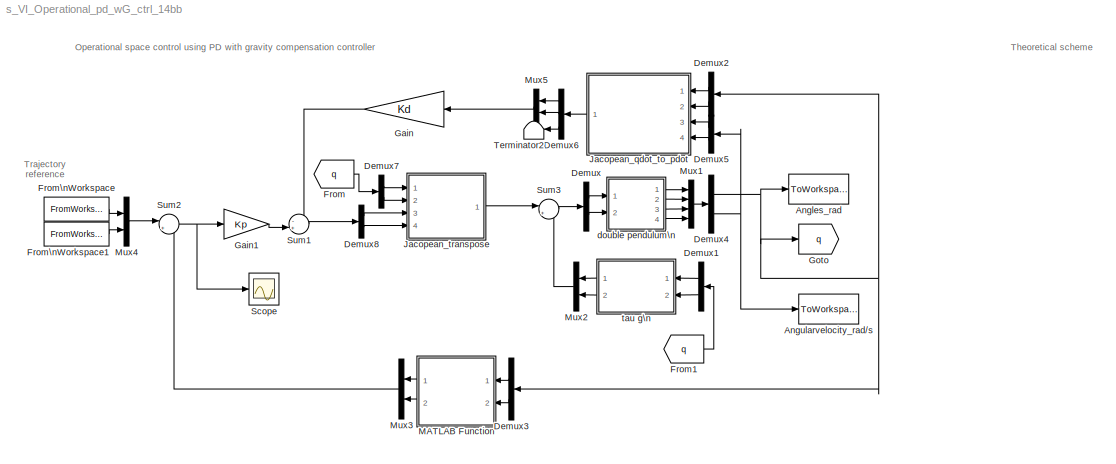
MODEL s_VI_Operational_pd_wG_ctrl_14bb
KIND model
BLOCK [ToWorkspace] Angles_rad
  FixptAsFi = on
  MaxDataPoints = inf
  Ports = [1]
  SID = 70
  SampleTime = -1
  Save2DSignal = 3-D array (concatenate along third dimension)
  SaveFormat = Timeseries
  VariableName = q
BLOCK [ToWorkspace] Angularvelocity_rad//s
  FixptAsFi = on
  MaxDataPoints = inf
  Ports = [1]
  SID = 71
  SampleTime = -1
  Save2DSignal = 3-D array (concatenate along third dimension)
  SaveFormat = Timeseries
  VariableName = q_dot
BLOCK [Demux] Demux
  DisplayOption = bar
  Outputs = 2
  Ports = [1, 2]
  SID = 1
BLOCK [Demux] Demux1
  DisplayOption = bar
  Outputs = 2
  Ports = [1, 2]
  SID = 109
BLOCK [Demux] Demux2
  DisplayOption = bar
  Outputs = 2
  Ports = [1, 2]
  SID = 119
BLOCK [Demux] Demux3
  DisplayOption = bar
  Outputs = 2
  Ports = [1, 2]
  SID = 115
BLOCK [Demux] Demux4
  DisplayOption = bar
  Outputs = 2
  Ports = [1, 2]
  SID = 47
BLOCK [Demux] Demux5
  DisplayOption = bar
  Outputs = 2
  Ports = [1, 2]
  SID = 120
BLOCK [Demux] Demux6
  DisplayOption = bar
  Outputs = 3
  Ports = [1, 3]
  SID = 124
BLOCK [Demux] Demux7
  DisplayOption = bar
  Outputs = 2
  Ports = [1, 2]
  SID = 135
BLOCK [Demux] Demux8
  DisplayOption = bar
  Outputs = 2
  Ports = [1, 2]
  SID = 136
BLOCK [From] From
  GotoTag = q
  SID = 132
BLOCK [From] From1
  GotoTag = q
  SID = 144
BLOCK [FromWorkspace] From\nWorkspace
  SID = 55
  SampleTime = 0
  VariableName = x2d
  ZeroCross = on
BLOCK [FromWorkspace] From\nWorkspace1
  SID = 57
  SampleTime = 0
  VariableName = y2d
  ZeroCross = on
BLOCK [Gain] Gain
  Gain = Kd
  OutDataTypeStr = Inherit: Inherit via internal rule
  ParamDataTypeStr = Inherit: Inherit via internal rule
  SID = 127
  SaturateOnIntegerOverflow = off
BLOCK [Gain] Gain1
  Gain = Kp
  OutDataTypeStr = Inherit: Inherit via internal rule
  ParamDataTypeStr = Inherit: Inherit via internal rule
  SID = 128
  SaturateOnIntegerOverflow = off
BLOCK [Goto] Goto
  GotoTag = q
  SID = 131
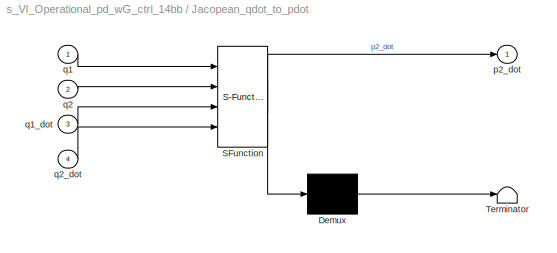
BLOCK [SubSystem] Jacopean_qdot_to_pdot
  ErrorFcn = Stateflow.Translate.translate
  PermitHierarchicalResolution = ParametersOnly
  Ports = [4, 1]
  RequestExecContextInheritance = off
  SFBlockType = MATLAB Function
  SID = 118
  TreatAsAtomicUnit = on
BLOCK [Demux] Jacopean_qdot_to_pdot/ Demux 
  Outputs = 1
  Ports = [1, 1]
  SID = 118::27
BLOCK [S-Function] Jacopean_qdot_to_pdot/ SFunction 
  EnableBusSupport = off
  FunctionName = sf_sfun
  PortCounts = [4 2]
  Ports = [4, 2]
  SFunctionDeploymentMode = off
  SID = 118::26
  Tag = Stateflow S-Function s_VI_Operational_pd_wG_ctrl_14bb 3
BLOCK [Terminator] Jacopean_qdot_to_pdot/ Terminator 
  SID = 118::28
BLOCK [Outport] Jacopean_qdot_to_pdot/p2_dot
  IconDisplay = Port number
  SID = 118::25
BLOCK [Inport] Jacopean_qdot_to_pdot/q1
  IconDisplay = Port number
  SID = 118::1
BLOCK [Inport] Jacopean_qdot_to_pdot/q1_dot
  IconDisplay = Port number
  Port = 3
  SID = 118::23
BLOCK [Inport] Jacopean_qdot_to_pdot/q2
  IconDisplay = Port number
  Port = 2
  SID = 118::22
BLOCK [Inport] Jacopean_qdot_to_pdot/q2_dot
  IconDisplay = Port number
  Port = 4
  SID = 118::24
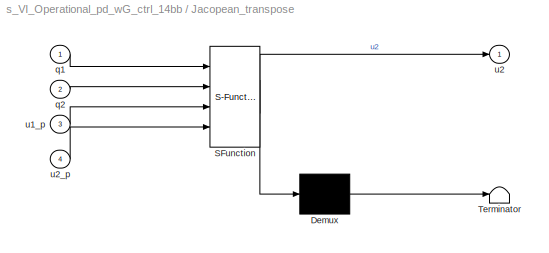
BLOCK [SubSystem] Jacopean_transpose
  ErrorFcn = Stateflow.Translate.translate
  PermitHierarchicalResolution = ParametersOnly
  Ports = [4, 1]
  RequestExecContextInheritance = off
  SFBlockType = MATLAB Function
  SID = 134
  TreatAsAtomicUnit = on
BLOCK [Demux] Jacopean_transpose/ Demux 
  Outputs = 1
  Ports = [1, 1]
  SID = 134::27
BLOCK [S-Function] Jacopean_transpose/ SFunction 
  EnableBusSupport = off
  FunctionName = sf_sfun
  PortCounts = [4 2]
  Ports = [4, 2]
  SFunctionDeploymentMode = off
  SID = 134::26
  Tag = Stateflow S-Function s_VI_Operational_pd_wG_ctrl_14bb 4
BLOCK [Terminator] Jacopean_transpose/ Terminator 
  SID = 134::28
BLOCK [Inport] Jacopean_transpose/q1
  IconDisplay = Port number
  SID = 134::1
BLOCK [Inport] Jacopean_transpose/q2
  IconDisplay = Port number
  Port = 2
  SID = 134::22
BLOCK [Inport] Jacopean_transpose/u1_p
  IconDisplay = Port number
  Port = 3
  SID = 134::23
BLOCK [Outport] Jacopean_transpose/u2
  IconDisplay = Port number
  SID = 134::25
BLOCK [Inport] Jacopean_transpose/u2_p
  IconDisplay = Port number
  Port = 4
  SID = 134::24
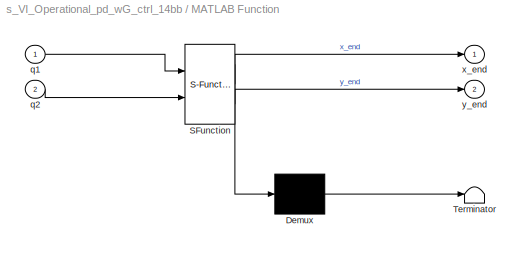
BLOCK [SubSystem] MATLAB Function
  ErrorFcn = Stateflow.Translate.translate
  PermitHierarchicalResolution = ParametersOnly
  Ports = [2, 2]
  RequestExecContextInheritance = off
  SFBlockType = MATLAB Function
  SID = 114
  TreatAsAtomicUnit = on
BLOCK [Demux] MATLAB Function/ Demux 
  Outputs = 1
  Ports = [1, 1]
  SID = 114::27
BLOCK [S-Function] MATLAB Function/ SFunction 
  EnableBusSupport = off
  FunctionName = sf_sfun
  PortCounts = [2 3]
  Ports = [2, 3]
  SFunctionDeploymentMode = off
  SID = 114::26
  Tag = Stateflow S-Function s_VI_Operational_pd_wG_ctrl_14bb 2
BLOCK [Terminator] MATLAB Function/ Terminator 
  SID = 114::28
BLOCK [Inport] MATLAB Function/q1
  IconDisplay = Port number
  SID = 114::1
BLOCK [Inport] MATLAB Function/q2
  IconDisplay = Port number
  Port = 2
  SID = 114::22
BLOCK [Outport] MATLAB Function/x_end
  IconDisplay = Port number
  SID = 114::5
BLOCK [Outport] MATLAB Function/y_end
  IconDisplay = Port number
  Port = 2
  SID = 114::25
BLOCK [Mux] Mux1
  DisplayOption = bar
  Ports = [4, 1]
  SID = 3
BLOCK [Mux] Mux2
  DisplayOption = bar
  Inputs = 2
  Ports = [2, 1]
  SID = 110
BLOCK [Mux] Mux3
  DisplayOption = bar
  Inputs = 2
  Ports = [2, 1]
  SID = 117
BLOCK [Mux] Mux4
  DisplayOption = bar
  Inputs = 2
  Ports = [2, 1]
  SID = 58
BLOCK [Mux] Mux5
  DisplayOption = bar
  Inputs = 2
  Ports = [2, 1]
  SID = 126
BLOCK [Scope] Scope
  DataFormat = StructureWithTime
  Decimation = 1
  Floating = off
  Grid = on
  LimitDataPoints = off
  MaxDataPoints = 5000
  NumInputPorts = 1
  Ports = [1]
  SID = 142
  SampleInput = off
  SampleTime = -1
  SaveName = ScopeData
  SaveToWorkspace = off
  ShowLegends = off
  TickLabels = OneTimeTick
  TimeRange = auto
  YMax = 0.10902
  YMin = -0.05308
  ZoomMode = on
BLOCK [Sum] Sum1
  IconShape = round
  InputSameDT = off
  Inputs = -+|
  OutDataTypeStr = Inherit: Inherit via internal rule
  Ports = [2, 1]
  SID = 129
  SaturateOnIntegerOverflow = off
BLOCK [Sum] Sum2
  IconShape = round
  InputSameDT = off
  Inputs = |+-
  OutDataTypeStr = Inherit: Inherit via internal rule
  Ports = [2, 1]
  SID = 45
  SaturateOnIntegerOverflow = off
BLOCK [Sum] Sum3
  IconShape = round
  InputSameDT = off
  Inputs = |++
  OutDataTypeStr = Inherit: Inherit via internal rule
  Ports = [2, 1]
  SID = 116
  SaturateOnIntegerOverflow = off
BLOCK [Terminator] Terminator2
  SID = 125
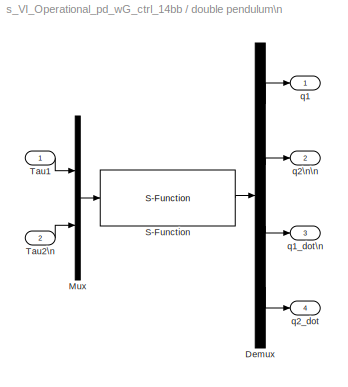
BLOCK [SubSystem] double pendulum\n
  Ports = [2, 4]
  RequestExecContextInheritance = off
  SID = 7
BLOCK [Demux] double pendulum\n/Demux
  DisplayOption = bar
  Ports = [1, 4]
  SID = 10
BLOCK [Mux] double pendulum\n/Mux
  DisplayOption = bar
  Inputs = 2
  Ports = [2, 1]
  SID = 11
BLOCK [S-Function] double pendulum\n/S-Function
  EnableBusSupport = off
  FunctionName = m_I_doublependulum
  Parameters = pi/2 -pi 0 0
  Ports = [1, 1]
  SFunctionDeploymentMode = off
  SID = 12
BLOCK [Inport] double pendulum\n/Tau1
  IconDisplay = Port number
  SID = 8
BLOCK [Inport] double pendulum\n/Tau2\n
  IconDisplay = Port number
  Port = 2
  SID = 9
BLOCK [Outport] double pendulum\n/q1
  IconDisplay = Port number
  SID = 13
BLOCK [Outport] double pendulum\n/q1_dot\n
  IconDisplay = Port number
  Port = 3
  SID = 15
BLOCK [Outport] double pendulum\n/q2\n\n
  IconDisplay = Port number
  Port = 2
  SID = 14
BLOCK [Outport] double pendulum\n/q2_dot
  IconDisplay = Port number
  Port = 4
  SID = 16
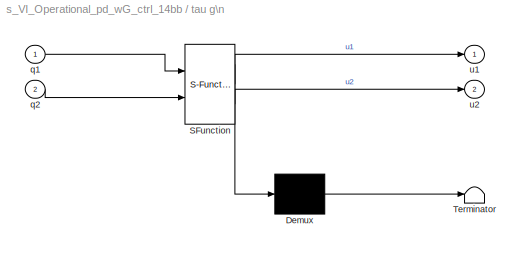
BLOCK [SubSystem] tau g\n
  ErrorFcn = Stateflow.Translate.translate
  PermitHierarchicalResolution = ParametersOnly
  Ports = [2, 2]
  RequestExecContextInheritance = off
  SFBlockType = MATLAB Function
  SID = 108
  TreatAsAtomicUnit = on
BLOCK [Demux] tau g\n/ Demux 
  Outputs = 1
  Ports = [1, 1]
  SID = 108::27
BLOCK [S-Function] tau g\n/ SFunction 
  EnableBusSupport = off
  FunctionName = sf_sfun
  PortCounts = [2 3]
  Ports = [2, 3]
  SFunctionDeploymentMode = off
  SID = 108::26
  Tag = Stateflow S-Function s_VI_Operational_pd_wG_ctrl_14bb 1
BLOCK [Terminator] tau g\n/ Terminator 
  SID = 108::28
BLOCK [Inport] tau g\n/q1
  IconDisplay = Port number
  SID = 108::1
BLOCK [Inport] tau g\n/q2
  IconDisplay = Port number
  Port = 2
  SID = 108::22
BLOCK [Outport] tau g\n/u1
  IconDisplay = Port number
  SID = 108::5
BLOCK [Outport] tau g\n/u2
  IconDisplay = Port number
  Port = 2
  SID = 108::25
ANNOTATION (root): \n \n Trajectory \n reference
ANNOTATION (root): \n \n Operational space control using PD with gravity compensation controller
ANNOTATION (root): \n \n Theoretical scheme
LINE Demux1:1 -> tau g\n:1
LINE Demux1:2 -> tau g\n:2
LINE Demux2:1 -> Jacopean_qdot_to_pdot:1
LINE Demux2:2 -> Jacopean_qdot_to_pdot:2
LINE Demux3:1 -> MATLAB Function:1
LINE Demux3:2 -> MATLAB Function:2
NET Demux4:1 -> Angles_rad:1, Demux2:1, Demux3:1, Goto:1
NET Demux4:2 -> Angularvelocity_rad//s:1, Demux5:1
LINE Demux5:1 -> Jacopean_qdot_to_pdot:3
LINE Demux5:2 -> Jacopean_qdot_to_pdot:4
LINE Demux6:1 -> Mux5:1
LINE Demux6:2 -> Mux5:2
LINE Demux6:3 -> Terminator2:1
LINE Demux7:1 -> Jacopean_transpose:1
LINE Demux7:2 -> Jacopean_transpose:2
LINE Demux8:1 -> Jacopean_transpose:3
LINE Demux8:2 -> Jacopean_transpose:4
LINE Demux:1 -> double pendulum\n:1
LINE Demux:2 -> double pendulum\n:2
LINE From1:1 -> Demux1:1
LINE From:1 -> Demux7:1
LINE From\nWorkspace1:1 -> Mux4:2
LINE From\nWorkspace:1 -> Mux4:1
LINE Gain1:1 -> Sum1:2
LINE Gain:1 -> Sum1:1
LINE Jacopean_qdot_to_pdot/ Demux :1 -> Jacopean_qdot_to_pdot/ Terminator :1
LINE Jacopean_qdot_to_pdot/ SFunction :1 -> Jacopean_qdot_to_pdot/ Demux :1
LINE Jacopean_qdot_to_pdot/ SFunction :2 -> Jacopean_qdot_to_pdot/p2_dot:1
LINE Jacopean_qdot_to_pdot/q1:1 -> Jacopean_qdot_to_pdot/ SFunction :1
LINE Jacopean_qdot_to_pdot/q1_dot:1 -> Jacopean_qdot_to_pdot/ SFunction :3
LINE Jacopean_qdot_to_pdot/q2:1 -> Jacopean_qdot_to_pdot/ SFunction :2
LINE Jacopean_qdot_to_pdot/q2_dot:1 -> Jacopean_qdot_to_pdot/ SFunction :4
LINE Jacopean_qdot_to_pdot:1 -> Demux6:1
LINE Jacopean_transpose/ Demux :1 -> Jacopean_transpose/ Terminator :1
LINE Jacopean_transpose/ SFunction :1 -> Jacopean_transpose/ Demux :1
LINE Jacopean_transpose/ SFunction :2 -> Jacopean_transpose/u2:1
LINE Jacopean_transpose/q1:1 -> Jacopean_transpose/ SFunction :1
LINE Jacopean_transpose/q2:1 -> Jacopean_transpose/ SFunction :2
LINE Jacopean_transpose/u1_p:1 -> Jacopean_transpose/ SFunction :3
LINE Jacopean_transpose/u2_p:1 -> Jacopean_transpose/ SFunction :4
LINE Jacopean_transpose:1 -> Sum3:1
LINE MATLAB Function/ Demux :1 -> MATLAB Function/ Terminator :1
LINE MATLAB Function/ SFunction :1 -> MATLAB Function/ Demux :1
LINE MATLAB Function/ SFunction :2 -> MATLAB Function/x_end:1
LINE MATLAB Function/ SFunction :3 -> MATLAB Function/y_end:1
LINE MATLAB Function/q1:1 -> MATLAB Function/ SFunction :1
LINE MATLAB Function/q2:1 -> MATLAB Function/ SFunction :2
LINE MATLAB Function:1 -> Mux3:1
LINE MATLAB Function:2 -> Mux3:2
LINE Mux1:1 -> Demux4:1
LINE Mux2:1 -> Sum3:2
LINE Mux3:1 -> Sum2:2
LINE Mux4:1 -> Sum2:1
LINE Mux5:1 -> Gain:1
LINE Sum1:1 -> Demux8:1
NET Sum2:1 -> Gain1:1, Scope:1
LINE Sum3:1 -> Demux:1
LINE double pendulum\n/Demux:1 -> double pendulum\n/q1:1
LINE double pendulum\n/Demux:2 -> double pendulum\n/q2\n\n:1
LINE double pendulum\n/Demux:3 -> double pendulum\n/q1_dot\n:1
LINE double pendulum\n/Demux:4 -> double pendulum\n/q2_dot:1
LINE double pendulum\n/Mux:1 -> double pendulum\n/S-Function:1
LINE double pendulum\n/S-Function:1 -> double pendulum\n/Demux:1
LINE double pendulum\n/Tau1:1 -> double pendulum\n/Mux:1
LINE double pendulum\n/Tau2\n:1 -> double pendulum\n/Mux:2
LINE double pendulum\n:1 -> Mux1:1
LINE double pendulum\n:2 -> Mux1:2
LINE double pendulum\n:3 -> Mux1:3
LINE double pendulum\n:4 -> Mux1:4
LINE tau g\n/ Demux :1 -> tau g\n/ Terminator :1
LINE tau g\n/ SFunction :1 -> tau g\n/ Demux :1
LINE tau g\n/ SFunction :2 -> tau g\n/u1:1
LINE tau g\n/ SFunction :3 -> tau g\n/u2:1
LINE tau g\n/q1:1 -> tau g\n/ SFunction :1
LINE tau g\n/q2:1 -> tau g\n/ SFunction :2
LINE tau g\n:1 -> Mux2:1
LINE tau g\n:2 -> Mux2:2
note: NET lines group one-source signal fan-out (src -> all destinations, sorted); 1:1 wires keep LINE
CHART tau g\n states=1 transitions=1
  STATE_LABEL 'eML_blk_kernel()'
CHART MATLAB Function states=1 transitions=1
  STATE_LABEL 'eML_blk_kernel()'
CHART Jacopean_qdot_to_pdot states=1 transitions=1
  STATE_LABEL 'eML_blk_kernel()'
CHART Jacopean_transpose states=1 transitions=1
  STATE_LABEL 'eML_blk_kernel()'
